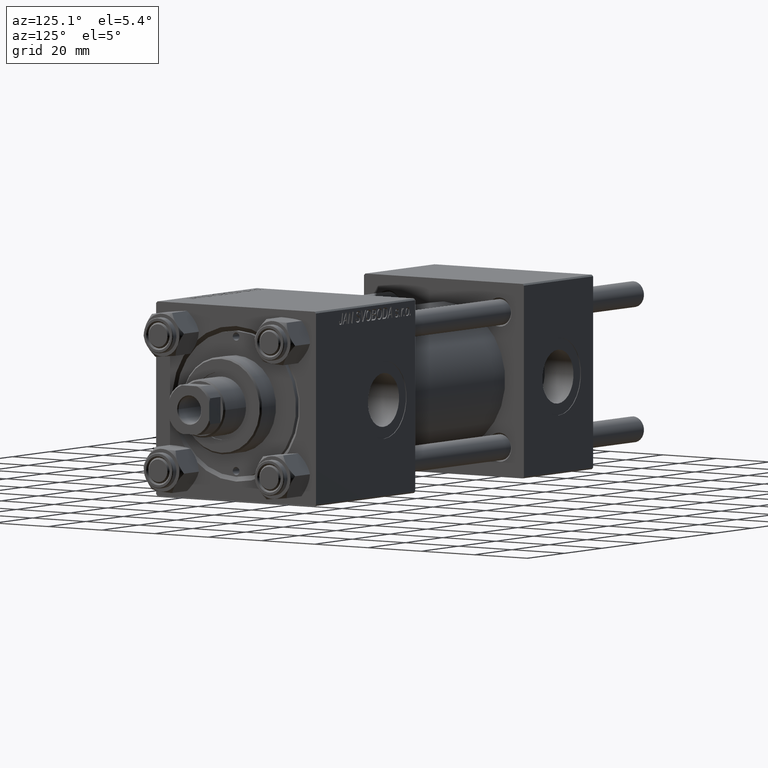
[diagram: clean part render]
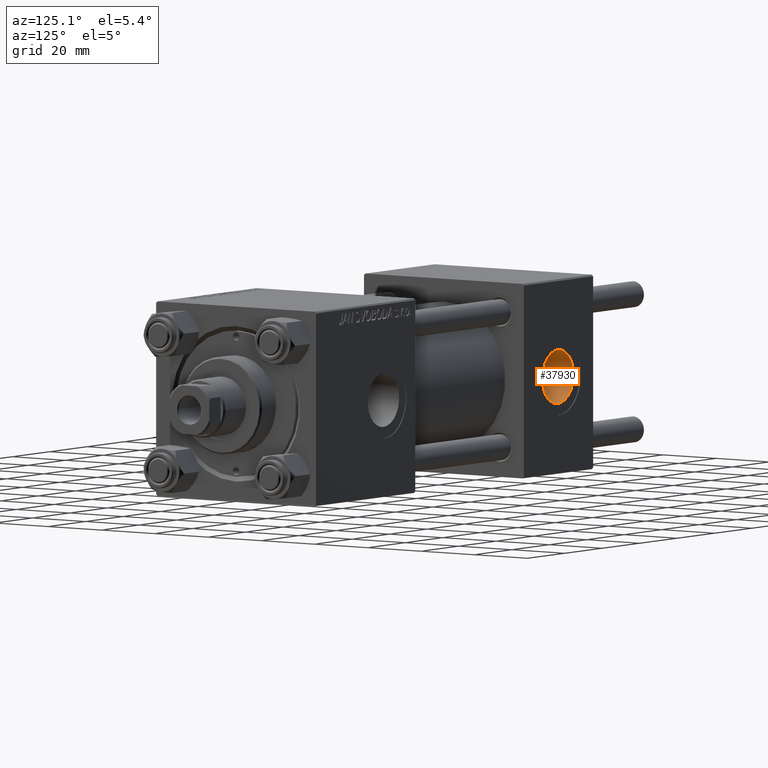
[diagram: same view with one face highlighted and labeled with its STEP entity id]
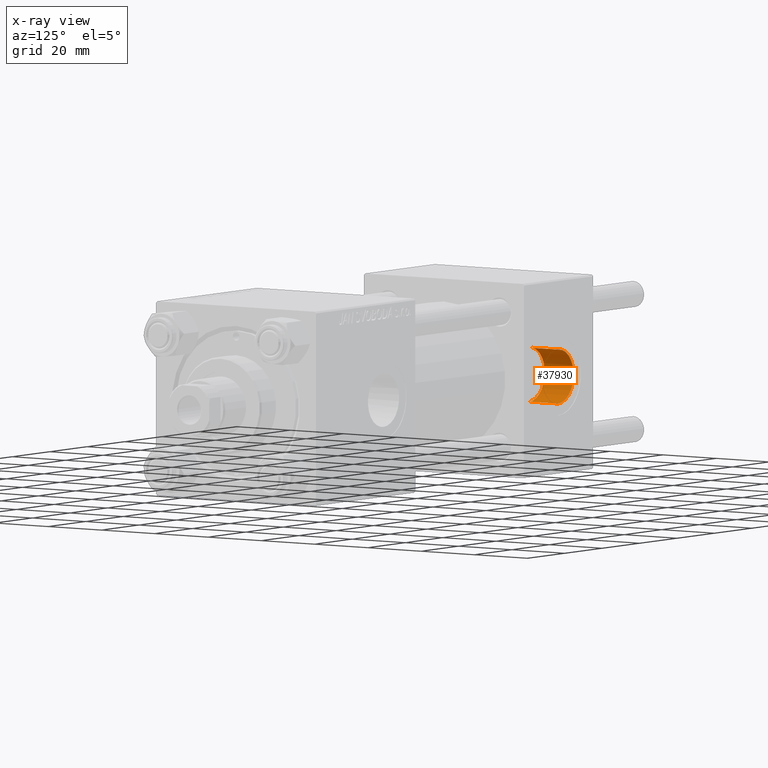
[diagram: x-ray of the same camera — body ghosted, the highlighted face saturated]
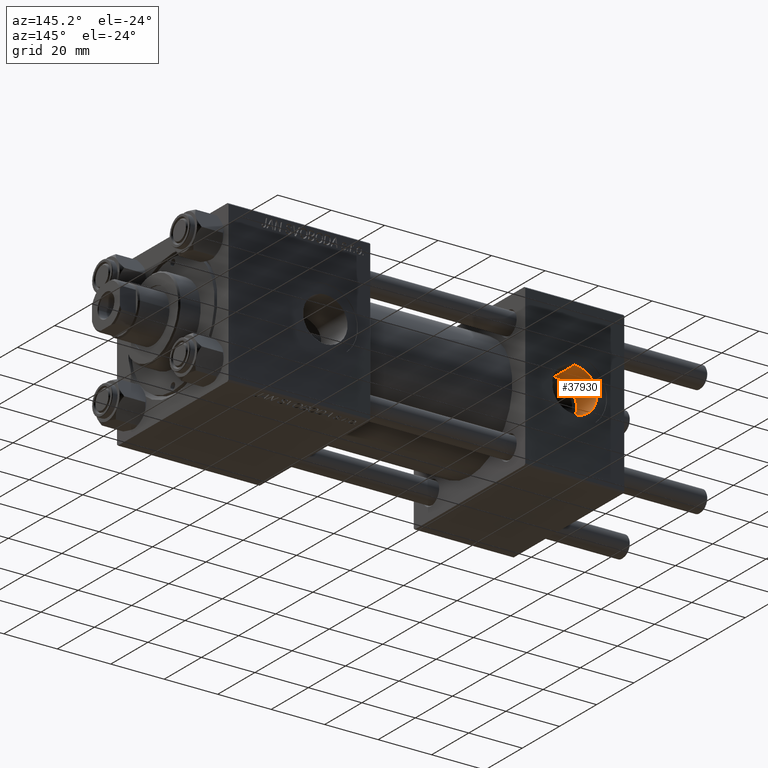
[diagram: same view with one face highlighted and labeled with its STEP entity id]
A machine part, auxiliary view. The second image highlights one B-rep face of the part: STEP entity #37930.
The next image is the same camera in x-ray: the body ghosted, the highlighted face saturated — about 0% of this face is hidden behind the body in this view.
A second angle (auxiliary view) of the same face is appended — the face is thin or edge-on in the first view.
In plain terms, the highlighted cylindrical surface (edge-blend (fillet) strip) has radius 8.33 mm, axis along (0, 1, 0).
Its self-contained STEP definition (entity closure, byte-faithful):
#1463 = CARTESIAN_POINT ( 'NONE',  ( 18.50000000000000000, 18.99999999999999289, -8.330000000000001847 ) ) ;
#2810 = CARTESIAN_POINT ( 'NONE',  ( 18.50000000000000000, 29.79999999999999361, 0.000000000000000000 ) ) ;
#5011 = ORIENTED_EDGE ( 'NONE', *, *, #36006, .T. ) ;
#5164 = ORIENTED_EDGE ( 'NONE', *, *, #14379, .T. ) ;
#5828 = VECTOR ( 'NONE', #8129, 1000.000000000000000 ) ;
#6573 = VERTEX_POINT ( 'NONE', #46678 ) ;
#8129 = DIRECTION ( 'NONE',  ( -0.000000000000000000, 1.000000000000000000, -0.000000000000000000 ) ) ;
#13736 = CARTESIAN_POINT ( 'NONE',  ( 18.50000000000000000, 18.99999999999999289, 8.330000000000001847 ) ) ;
#13908 = CARTESIAN_POINT ( 'NONE',  ( 18.50000000000000000, 29.79999999999999361, -8.330000000000001847 ) ) ;
#14379 = EDGE_CURVE ( 'NONE', #27663, #44720, #20273, .T. ) ;
#15052 = EDGE_CURVE ( 'NONE', #47735, #6573, #45434, .T. ) ;
#15931 = EDGE_CURVE ( 'NONE', #6573, #44720, #17547, .T. ) ;
#17547 = LINE ( 'NONE', #13736, #39759 ) ;
#20273 = CIRCLE ( 'NONE', #41263, 8.330000000000001847 ) ;
#21251 = AXIS2_PLACEMENT_3D ( 'NONE', #42066, #49667, #23121 ) ;
#21686 = ORIENTED_EDGE ( 'NONE', *, *, #15052, .F. ) ;
#23121 = DIRECTION ( 'NONE',  ( 0.000000000000000000, 0.000000000000000000, 1.000000000000000000 ) ) ;
#23598 = CARTESIAN_POINT ( 'NONE',  ( 18.50000000000000000, 18.99999999999999289, -8.330000000000001847 ) ) ;
#23647 = AXIS2_PLACEMENT_3D ( 'NONE', #23884, #35248, #38553 ) ;
#23884 = CARTESIAN_POINT ( 'NONE',  ( 18.50000000000000000, 18.99999999999999289, 0.000000000000000000 ) ) ;
#26636 = EDGE_LOOP ( 'NONE', ( #21686, #5011, #5164, #41342 ) ) ;
#27663 = VERTEX_POINT ( 'NONE', #13908 ) ;
#29653 = DIRECTION ( 'NONE',  ( 0.000000000000000000, 0.000000000000000000, 1.000000000000000000 ) ) ;
#31193 = FACE_OUTER_BOUND ( 'NONE', #26636, .T. ) ;
#32470 = DIRECTION ( 'NONE',  ( -0.000000000000000000, 1.000000000000000000, -0.000000000000000000 ) ) ;
#33993 = CYLINDRICAL_SURFACE ( 'NONE', #21251, 8.330000000000001847 ) ;
#35248 = DIRECTION ( 'NONE',  ( 0.000000000000000000, 1.000000000000000000, 0.000000000000000000 ) ) ;
#36006 = EDGE_CURVE ( 'NONE', #47735, #27663, #42549, .T. ) ;
#37239 = DIRECTION ( 'NONE',  ( 0.000000000000000000, 1.000000000000000000, 0.000000000000000000 ) ) ;
#37930 = ADVANCED_FACE ( 'NONE', ( #31193 ), #33993, .F. ) ;
#38553 = DIRECTION ( 'NONE',  ( 0.000000000000000000, 0.000000000000000000, 1.000000000000000000 ) ) ;
#39759 = VECTOR ( 'NONE', #32470, 1000.000000000000000 ) ;
#41263 = AXIS2_PLACEMENT_3D ( 'NONE', #2810, #37239, #29653 ) ;
#41342 = ORIENTED_EDGE ( 'NONE', *, *, #15931, .F. ) ;
#42066 = CARTESIAN_POINT ( 'NONE',  ( 18.50000000000000000, 18.99999999999999289, 0.000000000000000000 ) ) ;
#42549 = LINE ( 'NONE', #23598, #5828 ) ;
#44720 = VERTEX_POINT ( 'NONE', #49096 ) ;
#45434 = CIRCLE ( 'NONE', #23647, 8.330000000000001847 ) ;
#46678 = CARTESIAN_POINT ( 'NONE',  ( 18.50000000000000000, 18.99999999999999289, 8.330000000000001847 ) ) ;
#47735 = VERTEX_POINT ( 'NONE', #1463 ) ;
#49096 = CARTESIAN_POINT ( 'NONE',  ( 18.50000000000000000, 29.79999999999999361, 8.330000000000001847 ) ) ;
#49667 = DIRECTION ( 'NONE',  ( -0.000000000000000000, 1.000000000000000000, -0.000000000000000000 ) ) ;